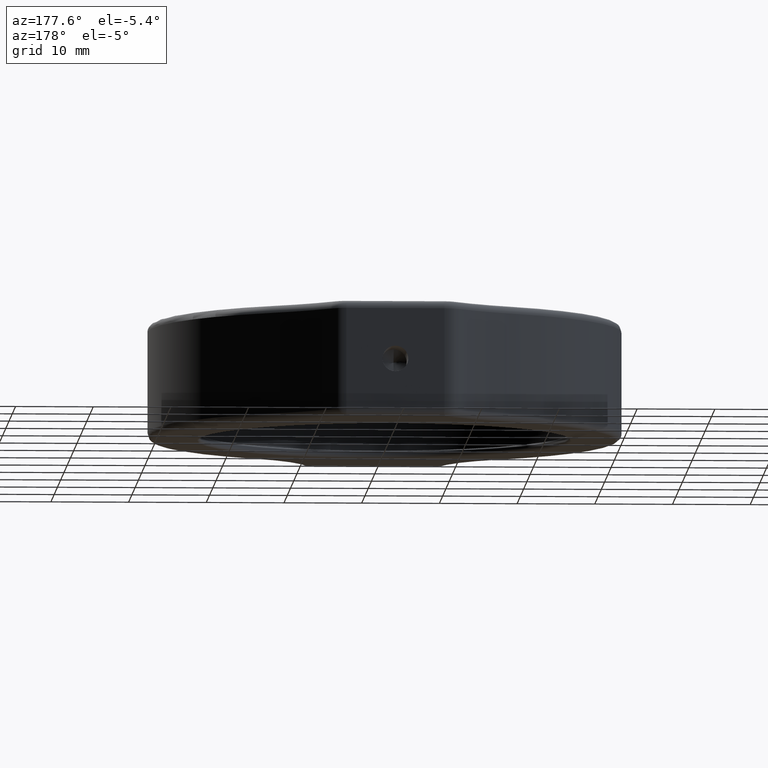
[diagram: clean part render]
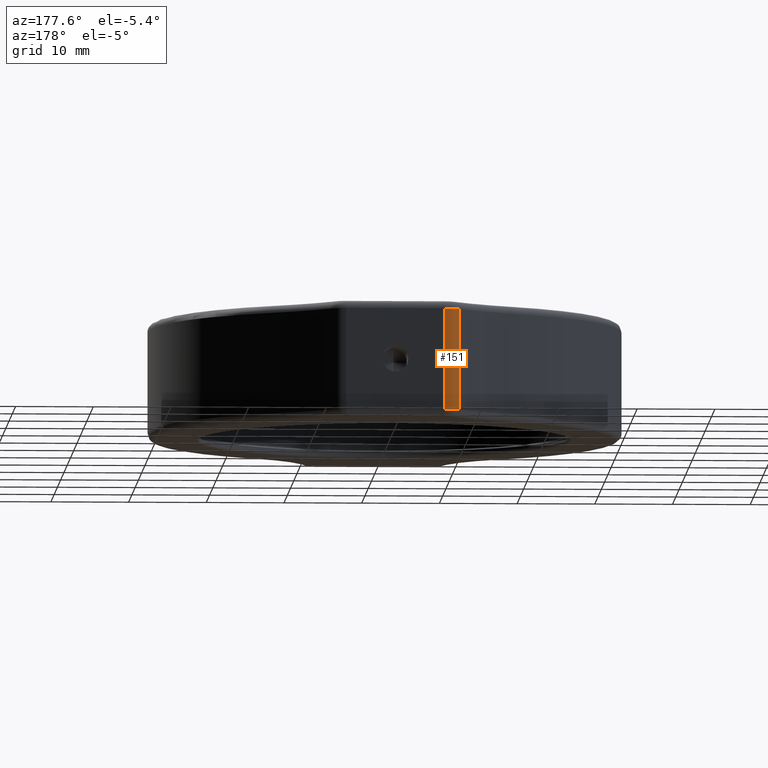
[diagram: same view with one face highlighted and labeled with its STEP entity id]
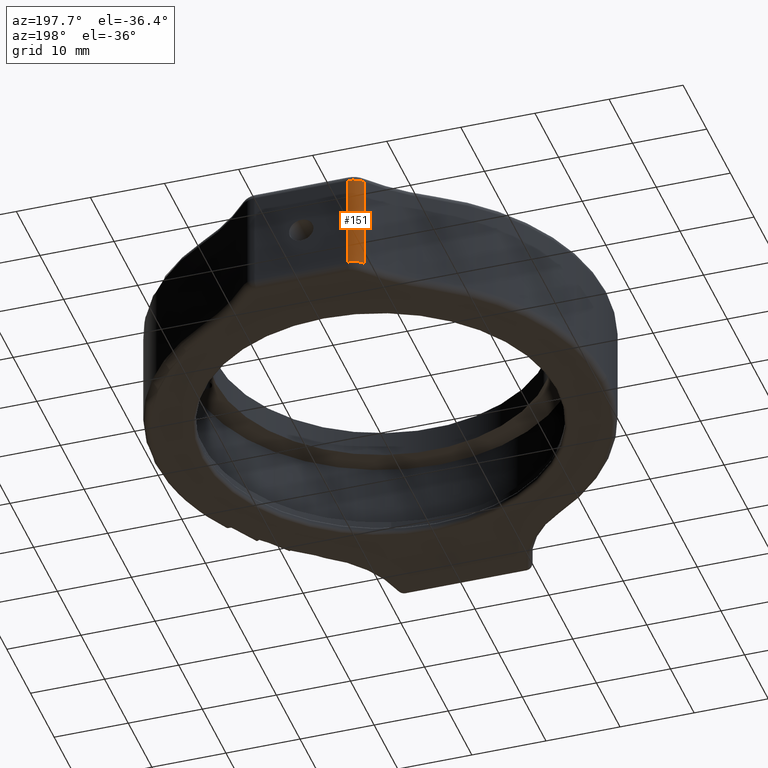
[diagram: same view with one face highlighted and labeled with its STEP entity id]
A machine part, auxiliary view. The second image highlights one B-rep face of the part: STEP entity #151.
A second angle (auxiliary view) of the same face is appended — the face is thin or edge-on in the first view.
In plain terms, the highlighted cylindrical surface (edge-blend (fillet) strip) has radius 2.5 mm, axis along (-0, 0, 1).
Its self-contained STEP definition (entity closure, byte-faithful):
#51 = CIRCLE ( 'NONE', #770, 2.500000000000005800 ) ;
#65 = LINE ( 'NONE', #1832, #1167 ) ;
#92 = DIRECTION ( 'NONE',  ( -1.000000000000000000, 0.0000000000000000000, 0.0000000000000000000 ) ) ;
#151 = ADVANCED_FACE ( 'NONE', ( #1530 ), #1971, .T. ) ;
#175 = CARTESIAN_POINT ( 'NONE',  ( -6.298798930161487100, 33.50000000000000700, -13.99999999999999800 ) ) ;
#191 = DIRECTION ( 'NONE',  ( -0.0000000000000000000, -0.0000000000000000000, 1.000000000000000000 ) ) ;
#343 = EDGE_CURVE ( 'NONE', #780, #765, #51, .T. ) ;
#378 = AXIS2_PLACEMENT_3D ( 'NONE', #2238, #191, #539 ) ;
#471 = EDGE_CURVE ( 'NONE', #1784, #765, #65, .T. ) ;
#539 = DIRECTION ( 'NONE',  ( -1.000000000000000000, -8.326672684688655100E-015, 0.0000000000000000000 ) ) ;
#566 = ORIENTED_EDGE ( 'NONE', *, *, #1963, .T. ) ;
#613 = AXIS2_PLACEMENT_3D ( 'NONE', #2113, #922, #1585 ) ;
#657 = VERTEX_POINT ( 'NONE', #1300 ) ;
#723 = VECTOR ( 'NONE', #1464, 1000.000000000000000 ) ;
#765 = VERTEX_POINT ( 'NONE', #1932 ) ;
#770 = AXIS2_PLACEMENT_3D ( 'NONE', #2166, #1117, #92 ) ;
#780 = VERTEX_POINT ( 'NONE', #1059 ) ;
#922 = DIRECTION ( 'NONE',  ( -0.0000000000000000000, 0.0000000000000000000, 1.000000000000000000 ) ) ;
#977 = ORIENTED_EDGE ( 'NONE', *, *, #1488, .T. ) ;
#1059 = CARTESIAN_POINT ( 'NONE',  ( -8.220810579183693200, 32.59870923592220000, -1.000000000000000900 ) ) ;
#1117 = DIRECTION ( 'NONE',  ( 0.0000000000000000000, 0.0000000000000000000, -1.000000000000000000 ) ) ;
#1167 = VECTOR ( 'NONE', #1309, 1000.000000000000000 ) ;
#1237 = ORIENTED_EDGE ( 'NONE', *, *, #471, .F. ) ;
#1300 = CARTESIAN_POINT ( 'NONE',  ( -8.220810579183693200, 32.59870923592220000, -13.99999999999999800 ) ) ;
#1309 = DIRECTION ( 'NONE',  ( -0.0000000000000000000, 0.0000000000000000000, 1.000000000000000000 ) ) ;
#1445 = LINE ( 'NONE', #1988, #723 ) ;
#1464 = DIRECTION ( 'NONE',  ( -0.0000000000000000000, 0.0000000000000000000, 1.000000000000000000 ) ) ;
#1488 = EDGE_CURVE ( 'NONE', #657, #780, #1445, .T. ) ;
#1530 = FACE_OUTER_BOUND ( 'NONE', #2055, .T. ) ;
#1553 = ORIENTED_EDGE ( 'NONE', *, *, #343, .T. ) ;
#1583 = CIRCLE ( 'NONE', #378, 2.500000000000005800 ) ;
#1585 = DIRECTION ( 'NONE',  ( 1.000000000000000000, 0.0000000000000000000, 0.0000000000000000000 ) ) ;
#1784 = VERTEX_POINT ( 'NONE', #175 ) ;
#1832 = CARTESIAN_POINT ( 'NONE',  ( -6.298798930161487100, 33.50000000000000700, -15.00000000000000000 ) ) ;
#1932 = CARTESIAN_POINT ( 'NONE',  ( -6.298798930161487100, 33.50000000000000700, -1.000000000000000900 ) ) ;
#1963 = EDGE_CURVE ( 'NONE', #1784, #657, #1583, .T. ) ;
#1971 = CYLINDRICAL_SURFACE ( 'NONE', #613, 2.500000000000004900 ) ;
#1988 = CARTESIAN_POINT ( 'NONE',  ( -8.220810579183693200, 32.59870923592220000, -15.00000000000000000 ) ) ;
#2055 = EDGE_LOOP ( 'NONE', ( #1237, #566, #977, #1553 ) ) ;
#2113 = CARTESIAN_POINT ( 'NONE',  ( -6.298798930161487100, 31.00000000000000000, -15.00000000000000000 ) ) ;
#2166 = CARTESIAN_POINT ( 'NONE',  ( -6.298798930161487100, 31.00000000000000000, -1.000000000000000900 ) ) ;
#2238 = CARTESIAN_POINT ( 'NONE',  ( -6.298798930161487100, 31.00000000000000000, -13.99999999999999800 ) ) ;